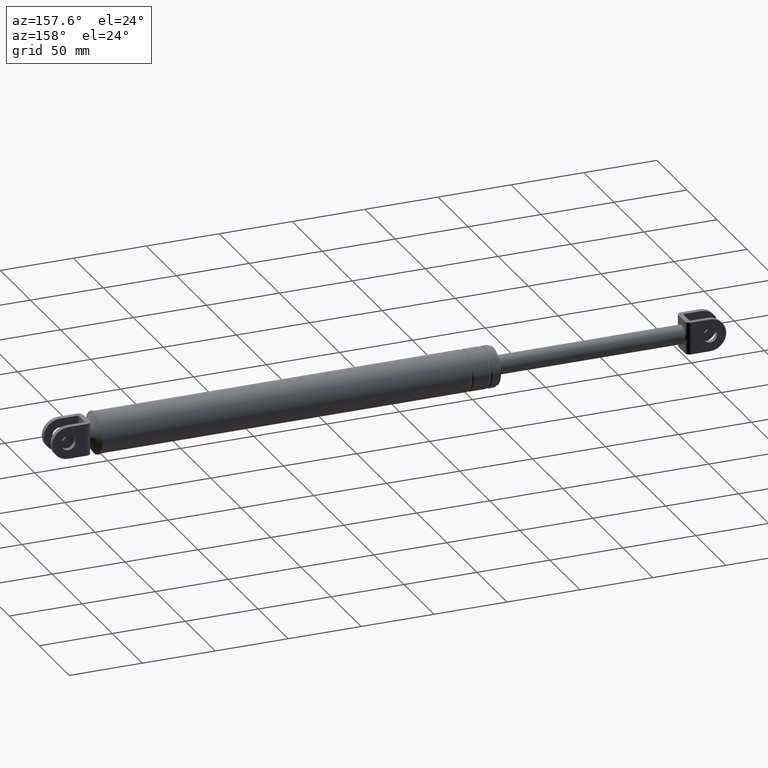
[diagram: clean part render]
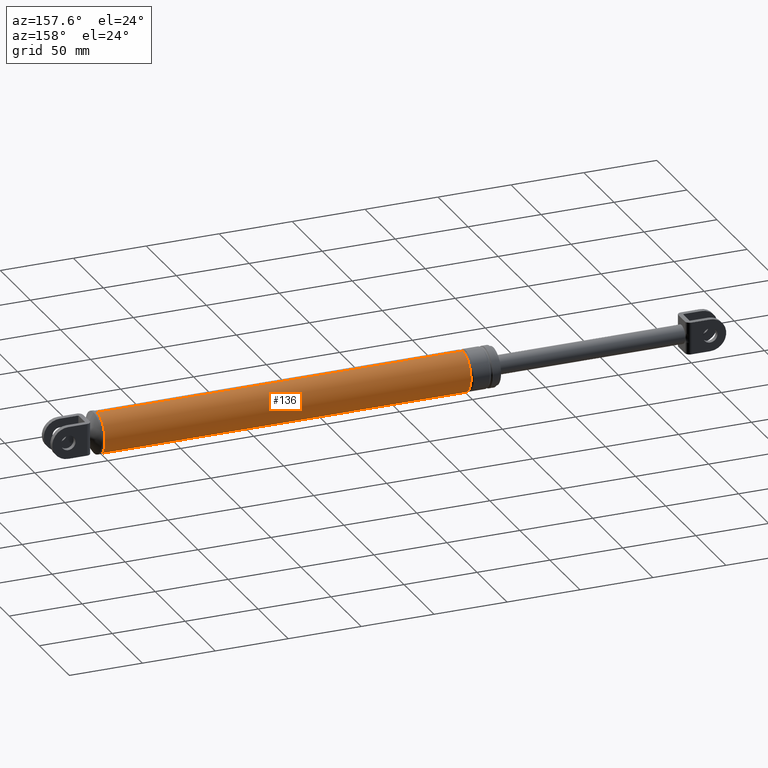
[diagram: same view with one face highlighted and labeled with its STEP entity id]
A machine part, auxiliary view. The second image highlights one B-rep face of the part: STEP entity #136.
In plain terms, the highlighted cylindrical surface (edge-blend (fillet) strip) has radius 13.7 mm, axis along (-1, -0, -0).
Its self-contained STEP definition (entity closure, byte-faithful):
#136=ADVANCED_FACE('',(#423),#422,.T.);
#422=CYLINDRICAL_SURFACE('',#1375,1.37000000000E+001);
#423=FACE_OUTER_BOUND('',#1376,.T.);
#1372=CARTESIAN_POINT('',(1.46675390861E+002,3.95008575888E-013,1.89728345508E+002));
#1373=DIRECTION('',(-1.00000000000E+000,-0.00000000000E+000,-0.00000000000E+000));
#1374=DIRECTION('',(0.00000000000E+000,2.88327427655E-014,1.00000000000E+000));
#1375=AXIS2_PLACEMENT_3D('',#1372,#1373,#1374);
#1376=EDGE_LOOP('',(#2231,#2232,#2233,#2234));
#2231=ORIENTED_EDGE('',*,*,#2489,.F.);
#2232=ORIENTED_EDGE('',*,*,#2490,.F.);
#2233=ORIENTED_EDGE('',*,*,#2466,.T.);
#2234=ORIENTED_EDGE('',*,*,#2491,.T.);
#2466=EDGE_CURVE('',#2894,#2895,#2896,.T.);
#2489=EDGE_CURVE('',#3045,#3046,#3047,.T.);
#2490=EDGE_CURVE('',#2894,#3045,#3053,.T.);
#2491=EDGE_CURVE('',#2895,#3046,#3059,.T.);
#2894=VERTEX_POINT('',#3822);
#2895=VERTEX_POINT('',#3823);
#2896=CIRCLE('',#3827,1.37000000000E+001);
#3045=VERTEX_POINT('',#3933);
#3046=VERTEX_POINT('',#3934);
#3047=CIRCLE('',#3938,1.37000000000E+001);
#3053=(BOUNDED_CURVE() B_SPLINE_CURVE(1,(#3939,#3940),.UNSPECIFIED.,.F.,.F.) B_SPLINE_CURVE_WITH_KNOTS((2,2),(3.69003689851E-002,9.63099631073E-001),.UNSPECIFIED.) CURVE() GEOMETRIC_REPRESENTATION_ITEM() RATIONAL_B_SPLINE_CURVE((1.00000000000E+000,1.00000000000E+000)) REPRESENTATION_ITEM('') );
#3059=(BOUNDED_CURVE() B_SPLINE_CURVE(1,(#3941,#3942),.UNSPECIFIED.,.F.,.F.) B_SPLINE_CURVE_WITH_KNOTS((2,2),(3.69003690037E-002,9.63099630996E-001),.UNSPECIFIED.) CURVE() GEOMETRIC_REPRESENTATION_ITEM() RATIONAL_B_SPLINE_CURVE((7.50000000000E-001,7.50000000000E-001)) REPRESENTATION_ITEM('') );
#3822=CARTESIAN_POINT('',(4.07675390861E+002,8.50282807126E-013,2.03428345508E+002));
#3823=CARTESIAN_POINT('',(4.07675390861E+002,-2.37694337870E-015,1.76028345508E+002));
#3824=CARTESIAN_POINT('',(4.07675390861E+002,4.23015369852E-013,1.89728345508E+002));
#3825=DIRECTION('',(-1.00000000000E+000,-2.93389539725E-015,-9.09492754956E-029));
#3826=DIRECTION('',(1.82407580425E-028,-3.11729944479E-014,-1.00000000000E+000));
#3827=AXIS2_PLACEMENT_3D('',#3824,#3825,#3826);
#3933=CARTESIAN_POINT('',(1.56675390861E+002,8.50874926073E-013,2.03428345508E+002));
#3934=CARTESIAN_POINT('',(1.56675390861E+002,-3.89268144094E-015,1.76028345508E+002));
#3935=CARTESIAN_POINT('',(1.56675390861E+002,4.22257500821E-013,1.89728345508E+002));
#3936=DIRECTION('',(-1.00000000000E+000,0.00000000000E+000,0.00000000000E+000));
#3937=DIRECTION('',(-0.00000000000E+000,-3.12283133552E-014,-1.00000000000E+000));
#3938=AXIS2_PLACEMENT_3D('',#3935,#3936,#3937);
#3939=CARTESIAN_POINT('',(4.07675390866E+002,7.90017151776E-013,2.03428345508E+002));
#3940=CARTESIAN_POINT('',(1.56675390840E+002,7.90017151776E-013,2.03428345508E+002));
#3941=CARTESIAN_POINT('',(4.07675390861E+002,0.00000000000E+000,1.76028345508E+002));
#3942=CARTESIAN_POINT('',(1.56675390861E+002,0.00000000000E+000,1.76028345508E+002));